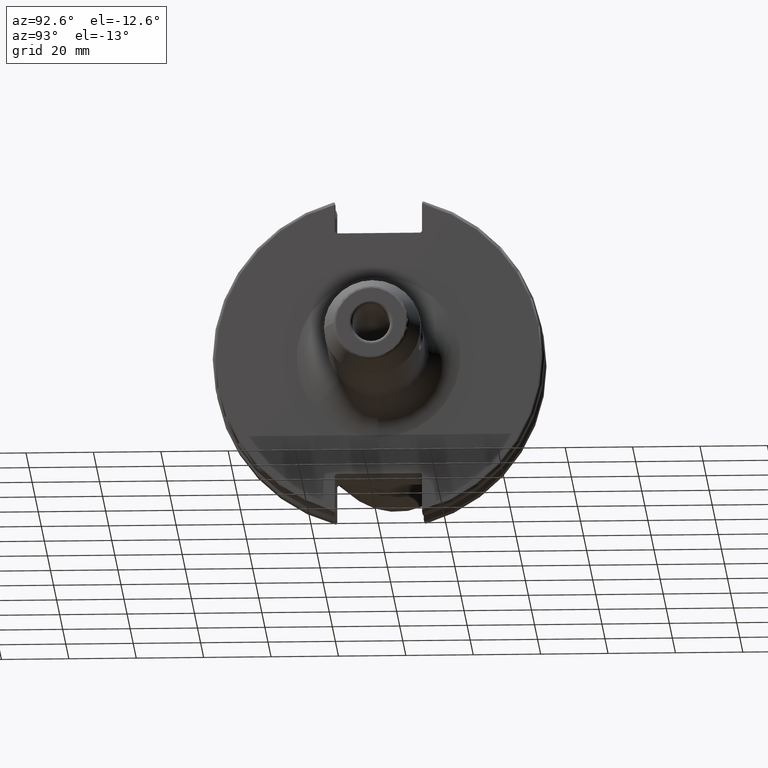
[diagram: clean part render]
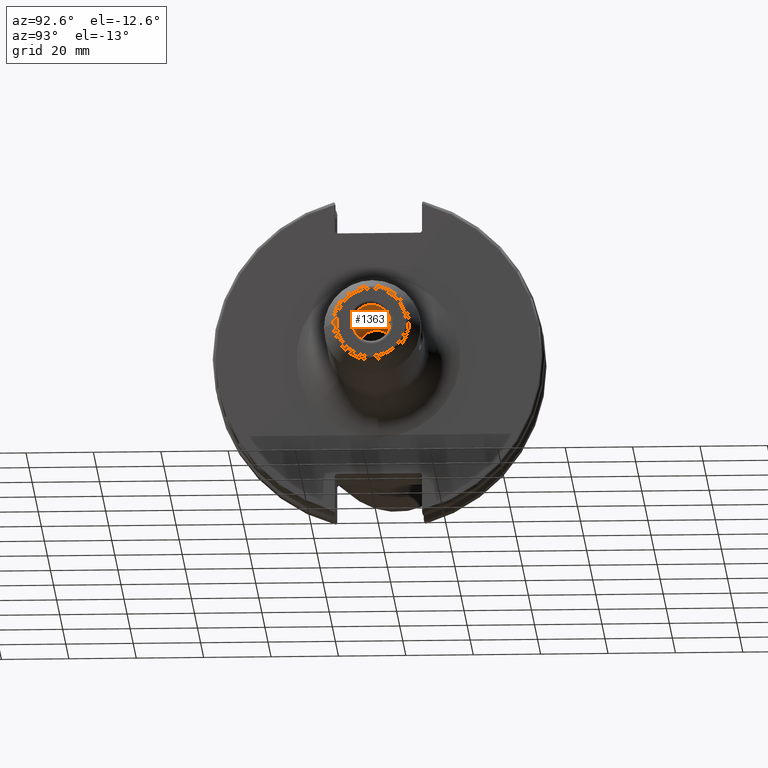
[diagram: same view with one face highlighted and labeled with its STEP entity id]
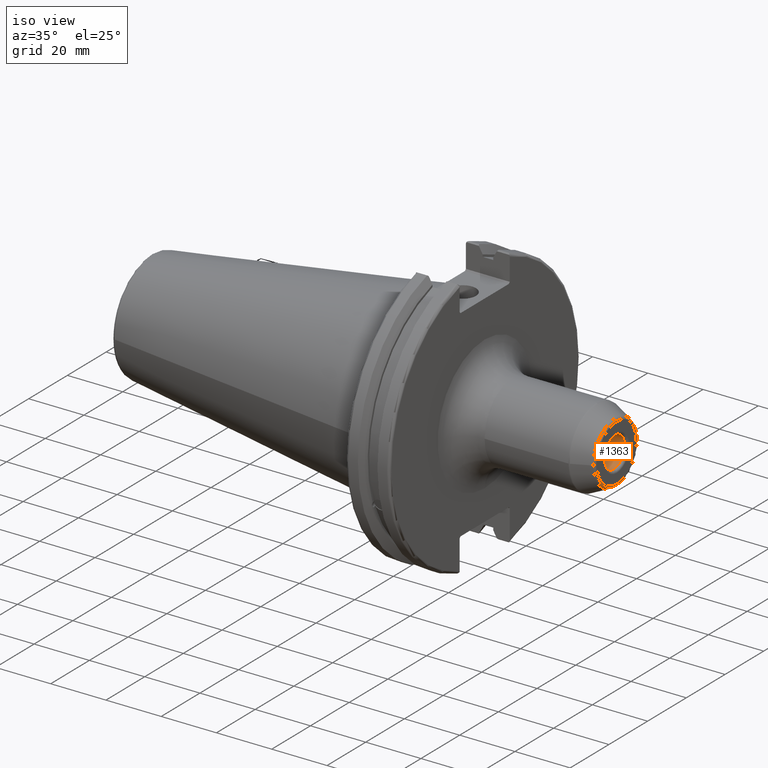
[diagram: same view with one face highlighted and labeled with its STEP entity id]
A machine part, auxiliary view. The second image highlights one B-rep face of the part: STEP entity #1363.
A second angle (iso view) of the same face is appended — the face is thin or edge-on in the first view.
In plain terms, the highlighted cylindrical surface (bore or boss wall) has radius 5.5563 mm, axis along (1, 0, 0).
Its self-contained STEP definition (entity closure, byte-faithful):
#71=FACE_BOUND('',#206,.T.);
#92=CYLINDRICAL_SURFACE('',#1486,5.55625);
#121=FACE_OUTER_BOUND('',#205,.T.);
#205=EDGE_LOOP('',(#973,#974,#975,#976,#977,#978));
#206=EDGE_LOOP('',(#979,#980));
#302=CIRCLE('',#1482,5.55625);
#303=CIRCLE('',#1483,5.55625);
#305=CIRCLE('',#1487,5.55625);
#306=CIRCLE('',#1488,5.55625);
#375=LINE('',#2178,#463);
#463=VECTOR('',#1690,5.55625);
#539=B_SPLINE_CURVE_WITH_KNOTS('',3,(#2070,#2071,#2072,#2073,#2074,#2075,
#2076,#2077,#2078,#2079,#2080,#2081),.UNSPECIFIED.,.F.,.F.,(4,2,2,2,2,4),
(0.,0.084539384487391,0.169078768974782,0.338157537949564,0.503559735116745,
0.668961932283927),.UNSPECIFIED.);
#540=B_SPLINE_CURVE_WITH_KNOTS('',3,(#2082,#2083,#2084,#2085,#2086,#2087,
#2088,#2089,#2090,#2091,#2092,#2093,#2094,#2095,#2096,#2097,#2098,#2099,
#2100,#2101,#2102,#2103,#2104,#2105,#2106,#2107,#2108,#2109,#2110,#2111,
#2112,#2113),.UNSPECIFIED.,.F.,.F.,(4,2,2,2,2,2,2,2,2,2,2,2,2,2,2,4),(0.668961932283927,
0.834364129451108,0.999766326618289,1.16884509559307,1.25338448008046,1.33792386456785,
1.42246324905524,1.50700263354263,1.67608140251742,1.8414835996846,2.00688579685178,
2.17228799401896,2.33769019118615,2.50676896016093,2.59130834464832,2.67584772913571),
 .UNSPECIFIED.);
#570=VERTEX_POINT('',#2067);
#571=VERTEX_POINT('',#2069);
#594=VERTEX_POINT('',#2168);
#595=VERTEX_POINT('',#2170);
#597=VERTEX_POINT('',#2177);
#598=VERTEX_POINT('',#2179);
#712=EDGE_CURVE('',#571,#570,#539,.T.);
#713=EDGE_CURVE('',#570,#571,#540,.T.);
#741=EDGE_CURVE('',#594,#595,#302,.T.);
#742=EDGE_CURVE('',#595,#594,#303,.T.);
#744=EDGE_CURVE('',#595,#597,#375,.T.);
#745=EDGE_CURVE('',#598,#597,#305,.T.);
#746=EDGE_CURVE('',#597,#598,#306,.T.);
#973=ORIENTED_EDGE('',*,*,#741,.F.);
#974=ORIENTED_EDGE('',*,*,#742,.F.);
#975=ORIENTED_EDGE('',*,*,#744,.T.);
#976=ORIENTED_EDGE('',*,*,#745,.F.);
#977=ORIENTED_EDGE('',*,*,#746,.F.);
#978=ORIENTED_EDGE('',*,*,#744,.F.);
#979=ORIENTED_EDGE('',*,*,#712,.T.);
#980=ORIENTED_EDGE('',*,*,#713,.T.);
#1363=ADVANCED_FACE('',(#121,#71),#92,.F.);
#1482=AXIS2_PLACEMENT_3D('',#2171,#1680,#1681);
#1483=AXIS2_PLACEMENT_3D('',#2172,#1682,#1683);
#1486=AXIS2_PLACEMENT_3D('',#2176,#1688,#1689);
#1487=AXIS2_PLACEMENT_3D('',#2180,#1691,#1692);
#1488=AXIS2_PLACEMENT_3D('',#2181,#1693,#1694);
#1680=DIRECTION('center_axis',(-1.,0.,0.));
#1681=DIRECTION('ref_axis',(0.,-1.22464679914735E-16,1.));
#1682=DIRECTION('center_axis',(-1.,0.,0.));
#1683=DIRECTION('ref_axis',(0.,-1.22464679914735E-16,1.));
#1688=DIRECTION('center_axis',(1.,0.,0.));
#1689=DIRECTION('ref_axis',(0.,0.,-1.));
#1690=DIRECTION('',(-1.,0.,0.));
#1691=DIRECTION('center_axis',(1.,0.,0.));
#1692=DIRECTION('ref_axis',(0.,0.,-1.));
#1693=DIRECTION('center_axis',(1.,0.,0.));
#1694=DIRECTION('ref_axis',(0.,0.,-1.));
#2067=CARTESIAN_POINT('',(54.991,5.55625,-2.91319206280864E-16));
#2069=CARTESIAN_POINT('',(50.8,3.64793545207423,4.191));
#2070=CARTESIAN_POINT('Ctrl Pts',(50.8,3.64793545207423,4.191));
#2071=CARTESIAN_POINT('Ctrl Pts',(51.0817979482913,3.64793545207423,4.191));
#2072=CARTESIAN_POINT('Ctrl Pts',(51.3643974091683,3.68159052877373,4.16230399542358));
#2073=CARTESIAN_POINT('Ctrl Pts',(51.9145785034325,3.80497693336097,4.04981898739312));
#2074=CARTESIAN_POINT('Ctrl Pts',(52.1822974210217,3.89415422927204,3.96609446940345));
#2075=CARTESIAN_POINT('Ctrl Pts',(52.9445541409849,4.20613364186896,3.64280934467047));
#2076=CARTESIAN_POINT('Ctrl Pts',(53.399500787844,4.47046141594202,3.32746825206169));
#2077=CARTESIAN_POINT('Ctrl Pts',(54.1195535248845,4.92447863012544,2.60741551502115));
#2078=CARTESIAN_POINT('Ctrl Pts',(54.4395984675808,5.15088842124204,2.15158360730686));
#2079=CARTESIAN_POINT('Ctrl Pts',(54.8758317067842,5.46784949931616,1.12409360885781));
#2080=CARTESIAN_POINT('Ctrl Pts',(54.991,5.55625,0.551340657223937));
#2081=CARTESIAN_POINT('Ctrl Pts',(54.991,5.55625,-1.38777878078145E-16));
#2082=CARTESIAN_POINT('Ctrl Pts',(54.991,5.55625,-6.93889390390723E-17));
#2083=CARTESIAN_POINT('Ctrl Pts',(54.991,5.55625,-0.551340657223938));
#2084=CARTESIAN_POINT('Ctrl Pts',(54.8758317067842,5.46784949931616,-1.12409360885781));
#2085=CARTESIAN_POINT('Ctrl Pts',(54.4395984675808,5.15088842124204,-2.15158360730686));
#2086=CARTESIAN_POINT('Ctrl Pts',(54.1195535248845,4.92447863012544,-2.60741551502115));
#2087=CARTESIAN_POINT('Ctrl Pts',(53.399500787844,4.47046141594202,-3.3274682520617));
#2088=CARTESIAN_POINT('Ctrl Pts',(52.9445541409849,4.20613364186896,-3.64280934467047));
#2089=CARTESIAN_POINT('Ctrl Pts',(52.1822974210217,3.89415422927204,-3.96609446940345));
#2090=CARTESIAN_POINT('Ctrl Pts',(51.9145785034325,3.80497693336097,-4.04981898739312));
#2091=CARTESIAN_POINT('Ctrl Pts',(51.3643974091683,3.68159052877373,-4.16230399542358));
#2092=CARTESIAN_POINT('Ctrl Pts',(51.0817979482913,3.64793545207423,-4.191));
#2093=CARTESIAN_POINT('Ctrl Pts',(50.5182020517087,3.64793545207423,-4.191));
#2094=CARTESIAN_POINT('Ctrl Pts',(50.2356025908318,3.68159052877372,-4.16230399542358));
#2095=CARTESIAN_POINT('Ctrl Pts',(49.6854214965675,3.80497693336096,-4.04981898739313));
#2096=CARTESIAN_POINT('Ctrl Pts',(49.4177025789783,3.89415422927203,-3.96609446940346));
#2097=CARTESIAN_POINT('Ctrl Pts',(48.6554458590151,4.20613364186894,-3.64280934467049));
#2098=CARTESIAN_POINT('Ctrl Pts',(48.2004992121561,4.47046141594201,-3.32746825206171));
#2099=CARTESIAN_POINT('Ctrl Pts',(47.4804464751155,4.92447863012543,-2.60741551502117));
#2100=CARTESIAN_POINT('Ctrl Pts',(47.1604015324192,5.15088842124203,-2.15158360730688));
#2101=CARTESIAN_POINT('Ctrl Pts',(46.7241682932158,5.46784949931615,-1.12409360885783));
#2102=CARTESIAN_POINT('Ctrl Pts',(46.609,5.55625,-0.551340657223941));
#2103=CARTESIAN_POINT('Ctrl Pts',(46.609,5.55625,0.551340657223941));
#2104=CARTESIAN_POINT('Ctrl Pts',(46.7241682932158,5.46784949931615,1.12409360885783));
#2105=CARTESIAN_POINT('Ctrl Pts',(47.1604015324192,5.15088842124203,2.15158360730688));
#2106=CARTESIAN_POINT('Ctrl Pts',(47.4804464751155,4.92447863012543,2.60741551502117));
#2107=CARTESIAN_POINT('Ctrl Pts',(48.2004992121561,4.47046141594201,3.32746825206171));
#2108=CARTESIAN_POINT('Ctrl Pts',(48.6554458590151,4.20613364186894,3.64280934467049));
#2109=CARTESIAN_POINT('Ctrl Pts',(49.4177025789783,3.89415422927203,3.96609446940346));
#2110=CARTESIAN_POINT('Ctrl Pts',(49.6854214965675,3.80497693336096,4.04981898739313));
#2111=CARTESIAN_POINT('Ctrl Pts',(50.2356025908318,3.68159052877372,4.16230399542358));
#2112=CARTESIAN_POINT('Ctrl Pts',(50.5182020517087,3.64793545207423,4.191));
#2113=CARTESIAN_POINT('Ctrl Pts',(50.8,3.64793545207423,4.191));
#2168=CARTESIAN_POINT('',(65.8,0.,-5.55625));
#2170=CARTESIAN_POINT('',(65.8,-6.80444377776248E-16,5.55625));
#2171=CARTESIAN_POINT('Origin',(65.8,0.,0.));
#2172=CARTESIAN_POINT('Origin',(65.8,0.,0.));
#2176=CARTESIAN_POINT('Origin',(-150.024395574536,0.,0.));
#2177=CARTESIAN_POINT('',(30.667492518721,-6.80444377776248E-16,5.55625));
#2178=CARTESIAN_POINT('',(-150.024395574536,-6.80444377776248E-16,5.55625));
#2179=CARTESIAN_POINT('',(30.667492518721,-6.80444377776249E-16,-5.55625));
#2180=CARTESIAN_POINT('Origin',(30.667492518721,0.,0.));
#2181=CARTESIAN_POINT('Origin',(30.667492518721,0.,0.));